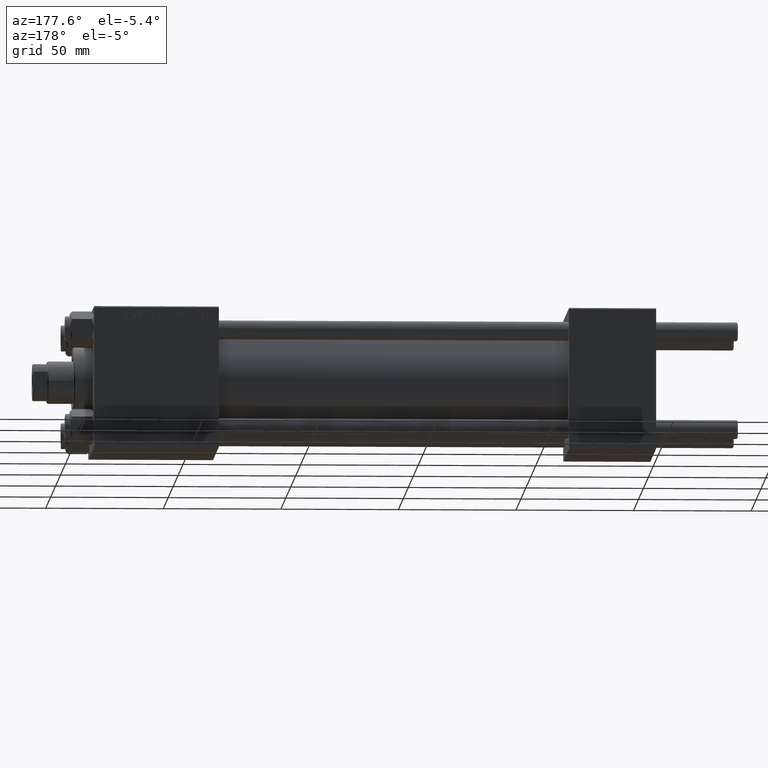
[diagram: clean part render]
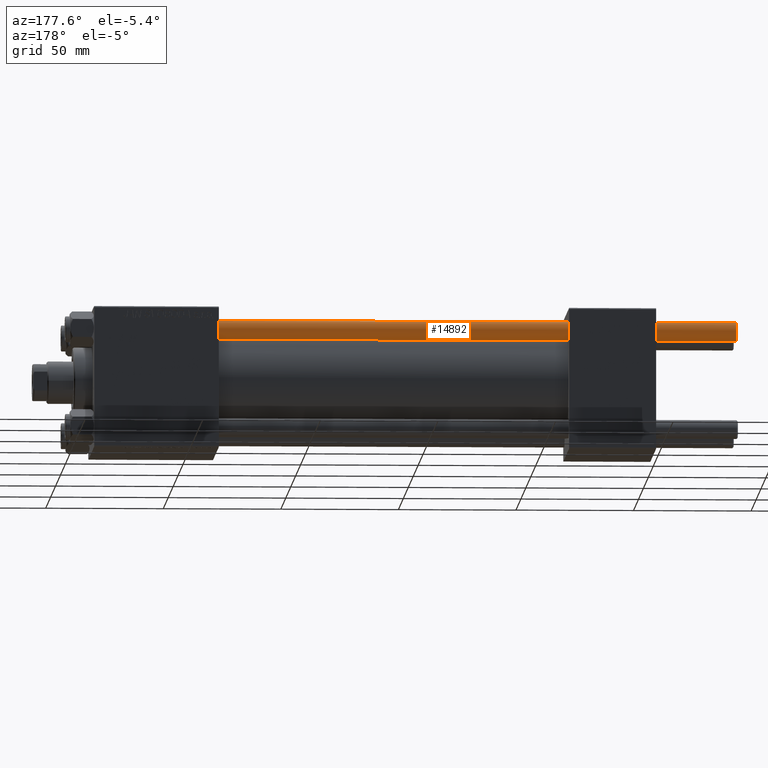
[diagram: same view with one face highlighted and labeled with its STEP entity id]
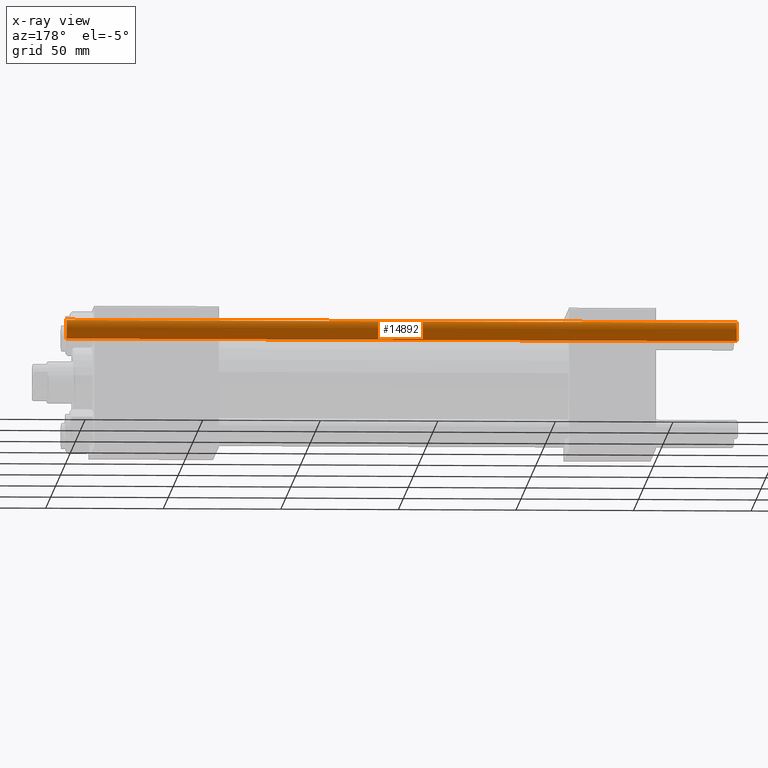
[diagram: x-ray of the same camera — body ghosted, the highlighted face saturated]
A machine part, auxiliary view. The second image highlights one B-rep face of the part: STEP entity #14892.
The next image is the same camera in x-ray: the body ghosted, the highlighted face saturated — about 0% of this face is hidden behind the body in this view.
In plain terms, the highlighted cylindrical surface (edge-blend (fillet) strip) has radius 4 mm, axis along (-1, -0, -0).
Its self-contained STEP definition (entity closure, byte-faithful):
#582 = VERTEX_POINT ( 'NONE', #46307 ) ;
#3002 = EDGE_CURVE ( 'NONE', #20370, #582, #44931, .T. ) ;
#5065 = DIRECTION ( 'NONE',  ( -0.000000000000000000, -0.000000000000000000, -1.000000000000000000 ) ) ;
#6240 = CARTESIAN_POINT ( 'NONE',  ( 0.000000000000000000, 0.000000000000000000, 285.5000000000000000 ) ) ;
#7339 = VERTEX_POINT ( 'NONE', #30985 ) ;
#7565 = DIRECTION ( 'NONE',  ( -0.000000000000000000, -0.000000000000000000, 1.000000000000000000 ) ) ;
#9805 = CARTESIAN_POINT ( 'NONE',  ( 4.000000000000000000, 4.898587196589412829E-16, 286.0000000000000000 ) ) ;
#12000 = CYLINDRICAL_SURFACE ( 'NONE', #14956, 4.000000000000000000 ) ;
#13830 = LINE ( 'NONE', #9805, #40226 ) ;
#13999 = ORIENTED_EDGE ( 'NONE', *, *, #33461, .T. ) ;
#14297 = DIRECTION ( 'NONE',  ( 1.000000000000000000, 0.000000000000000000, 0.000000000000000000 ) ) ;
#14892 = ADVANCED_FACE ( 'NONE', ( #42281 ), #12000, .T. ) ;
#14956 = AXIS2_PLACEMENT_3D ( 'NONE', #23109, #23621, #42793 ) ;
#15060 = ORIENTED_EDGE ( 'NONE', *, *, #49037, .F. ) ;
#16809 = ORIENTED_EDGE ( 'NONE', *, *, #26036, .T. ) ;
#16891 = CARTESIAN_POINT ( 'NONE',  ( -4.000000000000000000, 0.000000000000000000, 286.0000000000000000 ) ) ;
#20370 = VERTEX_POINT ( 'NONE', #27278 ) ;
#21722 = VECTOR ( 'NONE', #5065, 1000.000000000000000 ) ;
#22119 = DIRECTION ( 'NONE',  ( 0.000000000000000000, 0.000000000000000000, -1.000000000000000000 ) ) ;
#23109 = CARTESIAN_POINT ( 'NONE',  ( 0.000000000000000000, 0.000000000000000000, 286.0000000000000000 ) ) ;
#23384 = CIRCLE ( 'NONE', #39545, 4.000000000000000000 ) ;
#23621 = DIRECTION ( 'NONE',  ( -0.000000000000000000, -0.000000000000000000, -1.000000000000000000 ) ) ;
#26036 = EDGE_CURVE ( 'NONE', #582, #30140, #13830, .T. ) ;
#27278 = CARTESIAN_POINT ( 'NONE',  ( -4.000000000000000000, 0.000000000000000000, 285.5000000000000000 ) ) ;
#28746 = LINE ( 'NONE', #16891, #21722 ) ;
#29234 = DIRECTION ( 'NONE',  ( -0.000000000000000000, -0.000000000000000000, -1.000000000000000000 ) ) ;
#30140 = VERTEX_POINT ( 'NONE', #41814 ) ;
#30778 = CARTESIAN_POINT ( 'NONE',  ( 0.000000000000000000, 0.000000000000000000, 0.5000000000000004441 ) ) ;
#30985 = CARTESIAN_POINT ( 'NONE',  ( -4.000000000000000000, 0.000000000000000000, 0.5000000000000004441 ) ) ;
#32938 = ORIENTED_EDGE ( 'NONE', *, *, #3002, .T. ) ;
#33461 = EDGE_CURVE ( 'NONE', #30140, #7339, #23384, .T. ) ;
#33886 = EDGE_LOOP ( 'NONE', ( #32938, #16809, #13999, #15060 ) ) ;
#34315 = DIRECTION ( 'NONE',  ( 1.000000000000000000, 0.000000000000000000, 0.000000000000000000 ) ) ;
#36908 = AXIS2_PLACEMENT_3D ( 'NONE', #6240, #22119, #14297 ) ;
#39545 = AXIS2_PLACEMENT_3D ( 'NONE', #30778, #7565, #34315 ) ;
#40226 = VECTOR ( 'NONE', #29234, 1000.000000000000000 ) ;
#41814 = CARTESIAN_POINT ( 'NONE',  ( 4.000000000000000000, 4.898587196589412829E-16, 0.5000000000000004441 ) ) ;
#42281 = FACE_OUTER_BOUND ( 'NONE', #33886, .T. ) ;
#42793 = DIRECTION ( 'NONE',  ( -1.000000000000000000, 0.000000000000000000, 0.000000000000000000 ) ) ;
#44931 = CIRCLE ( 'NONE', #36908, 4.000000000000000000 ) ;
#46307 = CARTESIAN_POINT ( 'NONE',  ( 4.000000000000000000, 4.898587196589412829E-16, 285.5000000000000000 ) ) ;
#49037 = EDGE_CURVE ( 'NONE', #20370, #7339, #28746, .T. ) ;